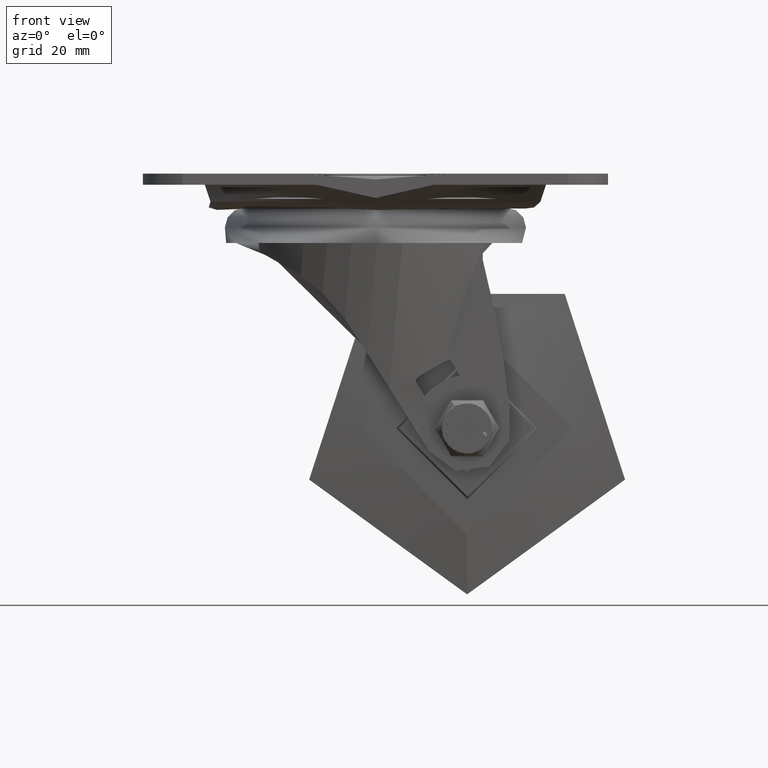
[diagram: clean part render]
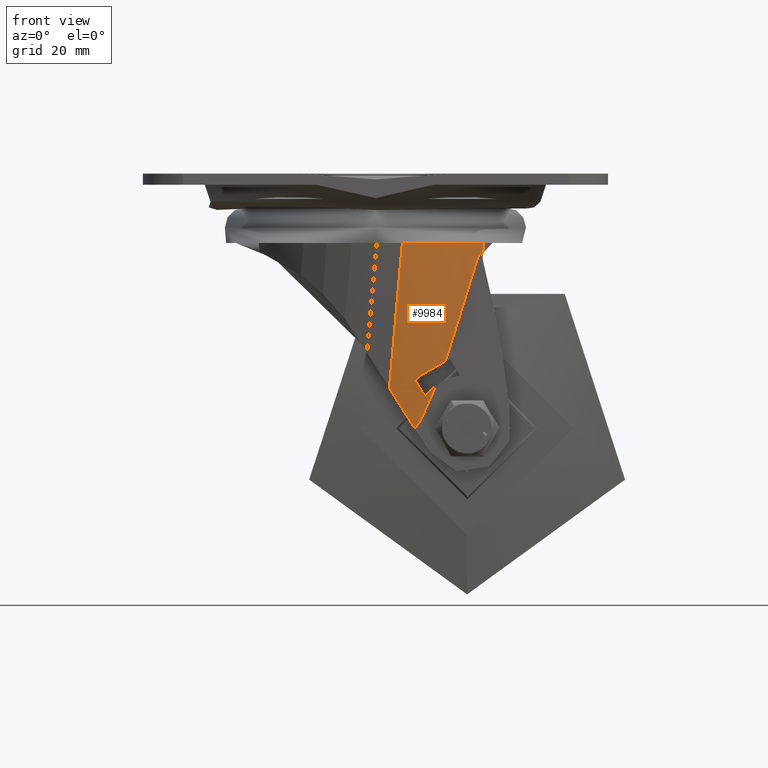
[diagram: same view with one face highlighted and labeled with its STEP entity id]
A machine part, front view. The second image highlights one B-rep face of the part: STEP entity #9984.
In plain terms, the highlighted face is a freeform B-spline surface patch.
Its self-contained STEP definition (entity closure, byte-faithful):
#284=B_SPLINE_SURFACE_WITH_KNOTS('',3,1,((#15486,#15487),(#15488,#15489),
(#15490,#15491),(#15492,#15493),(#15494,#15495),(#15496,#15497),(#15498,
#15499),(#15500,#15501),(#15502,#15503),(#15504,#15505),(#15506,#15507),
(#15508,#15509),(#15510,#15511),(#15512,#15513),(#15514,#15515),(#15516,
#15517),(#15518,#15519),(#15520,#15521),(#15522,#15523)),.UNSPECIFIED.,
 .F.,.F.,.F.,(4,2,2,2,2,2,2,2,1,4),(2,2),(0.,0.145707116189752,0.25129198299392,
0.356876849798088,0.409669283200172,0.462461716602256,0.51525415000434,
0.568046583406424,0.713753699596176,1.),(-100.,100.),.UNSPECIFIED.);
#405=ELLIPSE('',#10899,12.9426856952495,4.35685013964677);
#406=ELLIPSE('',#10900,2476.75222770739,450.920906771423);
#407=ELLIPSE('',#10901,133.472695881944,60.0200498495369);
#825=B_SPLINE_CURVE_WITH_KNOTS('',3,(#14968,#14969,#14970,#14971,#14972,
#14973,#14974,#14975,#14976,#14977,#14978,#14979,#14980,#14981,#14982,#14983,
#14984,#14985,#14986,#14987,#14988,#14989,#14990,#14991,#14992,#14993,#14994,
#14995,#14996,#14997),.UNSPECIFIED.,.F.,.F.,(4,2,2,2,2,2,2,2,2,2,2,2,2,
2,4),(9.98984317856809E-7,0.00895409234583361,0.014333160842674,0.0250995393866208,
0.0322898054343559,0.0418745984938202,0.047343928772949,0.0619278574650979,
0.0702782897149095,0.0798153277777112,0.0846467274807089,0.10266493464422,
0.116129834315476,0.136351991514442,0.165140722240407),.UNSPECIFIED.);
#841=B_SPLINE_CURVE_WITH_KNOTS('',3,(#15529,#15530,#15531,#15532,#15533,
#15534),.UNSPECIFIED.,.F.,.F.,(4,2,4),(-1.39702457417969,-0.55994134552425,
-0.00112300571014627),.UNSPECIFIED.);
#842=B_SPLINE_CURVE_WITH_KNOTS('',3,(#15538,#15539,#15540,#15541,#15542,
#15543,#15544,#15545,#15546,#15547,#15548,#15549,#15550),.UNSPECIFIED.,
 .F.,.F.,(4,3,3,3,4),(9.99999697947428E-7,0.0433461345695669,0.0986918822840282,
0.169573323051287,0.196522163107744),.UNSPECIFIED.);
#843=B_SPLINE_CURVE_WITH_KNOTS('',3,(#15552,#15553,#15554,#15555,#15556,
#15557,#15558,#15559,#15560,#15561),.UNSPECIFIED.,.F.,.F.,(4,3,3,4),(-0.875365755125785,
-0.437267686760523,-0.175629796504185,-1.00000000144074E-6),
 .UNSPECIFIED.);
#844=B_SPLINE_CURVE_WITH_KNOTS('',3,(#15563,#15564,#15565,#15566,#15567,
#15568,#15569,#15570,#15571,#15572,#15573,#15574,#15575),.UNSPECIFIED.,
 .F.,.F.,(4,3,3,3,4),(1.00000002677115E-6,0.0737502306970631,0.177804687490423,
0.310577260416321,0.357244979687233),.UNSPECIFIED.);
#845=B_SPLINE_CURVE_WITH_KNOTS('',3,(#15579,#15580,#15581,#15582,#15583,
#15584,#15585),.UNSPECIFIED.,.F.,.F.,(4,3,4),(-0.155589021992581,-0.0777929682373567,
-1.00000109869451E-6),.UNSPECIFIED.);
#846=B_SPLINE_CURVE_WITH_KNOTS('',3,(#15587,#15588,#15589,#15590,#15591,
#15592,#15593,#15594,#15595,#15596,#15597,#15598,#15599,#15600,#15601,#15602,
#15603,#15604,#15605,#15606,#15607,#15608),.UNSPECIFIED.,.F.,.F.,(4,3,3,
3,3,3,3,4),(-0.702289995427637,-0.526542371204496,-0.380112606210669,-0.350794746981354,
-0.272093765528381,-0.179410342944114,-0.0884228608013691,-1.00000001412077E-6),
 .UNSPECIFIED.);
#847=B_SPLINE_CURVE_WITH_KNOTS('',3,(#15610,#15611,#15612,#15613,#15614,
#15615),.UNSPECIFIED.,.F.,.F.,(4,2,4),(-2.61628651112819,-1.30823317989132,
-9.99999980155764E-7),.UNSPECIFIED.);
#848=B_SPLINE_CURVE_WITH_KNOTS('',3,(#15622,#15623,#15624,#15625,#15626,
#15627,#15628,#15629,#15630,#15631,#15632,#15633,#15634,#15635,#15636,#15637,
#15638,#15639,#15640,#15641,#15642,#15643,#15644,#15645,#15646,#15647,#15648,
#15649,#15650,#15651,#15652,#15653,#15654,#15655,#15656,#15657,#15658,#15659,
#15660,#15661,#15662,#15663,#15664,#15665,#15666,#15667,#15668,#15669,#15670,
#15671,#15672,#15673,#15674,#15675,#15676,#15677,#15678,#15679),
 .UNSPECIFIED.,.F.,.F.,(4,3,3,3,3,3,3,3,3,3,3,3,3,3,3,3,3,3,3,4),(-0.0786994418521546,
-0.0414667695336525,-0.0393357265743816,-0.0393007758129128,-0.0392480370192911,
-0.0392233325566457,-0.0392088533894709,-0.0391968398791962,-0.0391118565709216,
-0.0390223178308034,-0.038977988752127,-0.0389331810508286,-0.0389091808796442,
-0.0388874996426447,-0.0388668283560932,-0.0388419288481972,-0.0388054220790569,
-0.0387410185038432,-0.00357091828324042,-1.00000010608441E-6),
 .UNSPECIFIED.);
#1534=LINE('',#15525,#2093);
#1535=LINE('',#15527,#2094);
#1536=LINE('',#15621,#2095);
#2093=VECTOR('',#12257,1000.);
#2094=VECTOR('',#12258,1000.);
#2095=VECTOR('',#12267,1000.);
#2644=FACE_OUTER_BOUND('',#3271,.T.);
#3271=EDGE_LOOP('',(#7273,#7274,#7275,#7276,#7277,#7278,#7279,#7280,#7281,
#7282,#7283,#7284,#7285,#7286,#7287,#7288));
#4002=CIRCLE('',#10902,189.964607445669);
#4499=VERTEX_POINT('',#14960);
#4500=VERTEX_POINT('',#14967);
#4558=VERTEX_POINT('',#15524);
#4559=VERTEX_POINT('',#15526);
#4560=VERTEX_POINT('',#15528);
#4561=VERTEX_POINT('',#15535);
#4562=VERTEX_POINT('',#15537);
#4563=VERTEX_POINT('',#15551);
#4564=VERTEX_POINT('',#15562);
#4565=VERTEX_POINT('',#15576);
#4566=VERTEX_POINT('',#15578);
#4567=VERTEX_POINT('',#15586);
#4568=VERTEX_POINT('',#15609);
#4569=VERTEX_POINT('',#15616);
#4570=VERTEX_POINT('',#15618);
#4571=VERTEX_POINT('',#15620);
#5521=EDGE_CURVE('',#4500,#4499,#825,.T.);
#5600=EDGE_CURVE('',#4558,#4500,#1534,.T.);
#5601=EDGE_CURVE('',#4559,#4499,#1535,.T.);
#5602=EDGE_CURVE('',#4559,#4560,#841,.T.);
#5603=EDGE_CURVE('',#4561,#4560,#405,.T.);
#5604=EDGE_CURVE('',#4561,#4562,#842,.T.);
#5605=EDGE_CURVE('',#4562,#4563,#843,.T.);
#5606=EDGE_CURVE('',#4563,#4564,#844,.T.);
#5607=EDGE_CURVE('',#4564,#4565,#406,.T.);
#5608=EDGE_CURVE('',#4565,#4566,#845,.T.);
#5609=EDGE_CURVE('',#4566,#4567,#846,.T.);
#5610=EDGE_CURVE('',#4567,#4568,#847,.T.);
#5611=EDGE_CURVE('',#4569,#4568,#407,.T.);
#5612=EDGE_CURVE('',#4570,#4569,#4002,.T.);
#5613=EDGE_CURVE('',#4570,#4571,#1536,.T.);
#5614=EDGE_CURVE('',#4571,#4558,#848,.T.);
#7273=ORIENTED_EDGE('',*,*,#5600,.T.);
#7274=ORIENTED_EDGE('',*,*,#5521,.T.);
#7275=ORIENTED_EDGE('',*,*,#5601,.F.);
#7276=ORIENTED_EDGE('',*,*,#5602,.T.);
#7277=ORIENTED_EDGE('',*,*,#5603,.F.);
#7278=ORIENTED_EDGE('',*,*,#5604,.T.);
#7279=ORIENTED_EDGE('',*,*,#5605,.T.);
#7280=ORIENTED_EDGE('',*,*,#5606,.T.);
#7281=ORIENTED_EDGE('',*,*,#5607,.T.);
#7282=ORIENTED_EDGE('',*,*,#5608,.T.);
#7283=ORIENTED_EDGE('',*,*,#5609,.T.);
#7284=ORIENTED_EDGE('',*,*,#5610,.T.);
#7285=ORIENTED_EDGE('',*,*,#5611,.F.);
#7286=ORIENTED_EDGE('',*,*,#5612,.F.);
#7287=ORIENTED_EDGE('',*,*,#5613,.T.);
#7288=ORIENTED_EDGE('',*,*,#5614,.T.);
#9984=ADVANCED_FACE('',(#2644),#284,.T.);
#10899=AXIS2_PLACEMENT_3D('',#15536,#12259,#12260);
#10900=AXIS2_PLACEMENT_3D('',#15577,#12261,#12262);
#10901=AXIS2_PLACEMENT_3D('',#15617,#12263,#12264);
#10902=AXIS2_PLACEMENT_3D('',#15619,#12265,#12266);
#12257=DIRECTION('',(-0.172987393925012,-0.0871557427478391,0.981060262190405));
#12258=DIRECTION('',(-0.172987393925089,-0.0871557427476565,0.981060262190407));
#12259=DIRECTION('center_axis',(0.973588249857607,0.203901458801726,0.102713751940673));
#12260=DIRECTION('ref_axis',(-0.0137900195395975,-0.39654600779585,0.917911269710897));
#12261=DIRECTION('center_axis',(-5.38513567672909E-5,0.861047334516471,
-0.508524812395729));
#12262=DIRECTION('ref_axis',(0.756892857756714,0.332375884431464,0.562707271434515));
#12263=DIRECTION('center_axis',(4.1666781947423E-9,-0.756047199734464,-0.654517098152276));
#12264=DIRECTION('ref_axis',(0.464877001790903,0.579493255615957,-0.669385494241936));
#12265=DIRECTION('center_axis',(-0.55971639592094,0.680836762611853,-0.472418097466095));
#12266=DIRECTION('ref_axis',(-0.690456522261517,-0.698392965926969,-0.188459693330599));
#12267=DIRECTION('',(-0.172987393921777,-0.0871557427511322,0.981060262190682));
#14960=CARTESIAN_POINT('',(535.28923922575,-468.857643322788,-15.6578203240255));
#14967=CARTESIAN_POINT('',(545.069881219443,-487.182275138033,-15.6578201443325));
#14968=CARTESIAN_POINT('Ctrl Pts',(545.069881219444,-487.182275138033,-15.6578201443312));
#14969=CARTESIAN_POINT('Ctrl Pts',(545.04845801567,-487.161497740817,-15.6578201443312));
#14970=CARTESIAN_POINT('Ctrl Pts',(544.831217940722,-486.952049689453,-15.6578309463128));
#14971=CARTESIAN_POINT('Ctrl Pts',(544.366714427605,-486.4813740981,-15.6578674438992));
#14972=CARTESIAN_POINT('Ctrl Pts',(544.194325443629,-486.302825653918,-15.657874983149));
#14973=CARTESIAN_POINT('Ctrl Pts',(543.682807383998,-485.761289334446,-15.6578602981904));
#14974=CARTESIAN_POINT('Ctrl Pts',(543.349655119619,-485.392732228945,-15.6578716976183));
#14975=CARTESIAN_POINT('Ctrl Pts',(542.807682080785,-484.766088646989,-15.657730169686));
#14976=CARTESIAN_POINT('Ctrl Pts',(542.594348473589,-484.512004447317,-15.6576484061244));
#14977=CARTESIAN_POINT('Ctrl Pts',(542.105358291535,-483.911989555115,-15.6576500966098));
#14978=CARTESIAN_POINT('Ctrl Pts',(541.832667002899,-483.563721748727,-15.6578197743224));
#14979=CARTESIAN_POINT('Ctrl Pts',(541.415273354124,-483.008676038084,-15.6578203579067));
#14980=CARTESIAN_POINT('Ctrl Pts',(541.265878758059,-482.805339727466,-15.6578404570667));
#14981=CARTESIAN_POINT('Ctrl Pts',(540.726472051464,-482.053778656312,-15.657889059104));
#14982=CARTESIAN_POINT('Ctrl Pts',(540.350585988019,-481.495804511967,-15.6578974384409));
#14983=CARTESIAN_POINT('Ctrl Pts',(539.786014983395,-480.601613927499,-15.6577618730861));
#14984=CARTESIAN_POINT('Ctrl Pts',(539.585993535713,-480.272562119533,-15.6575800521336));
#14985=CARTESIAN_POINT('Ctrl Pts',(539.169498126139,-479.560404972335,-15.6575624091746));
#14986=CARTESIAN_POINT('Ctrl Pts',(538.954897424433,-479.176558175975,-15.6577981589137));
#14987=CARTESIAN_POINT('Ctrl Pts',(538.642903802193,-478.592184599534,-15.6578296755225));
#14988=CARTESIAN_POINT('Ctrl Pts',(538.539864578492,-478.394541656868,-15.657872493385));
#14989=CARTESIAN_POINT('Ctrl Pts',(538.061434582864,-477.454380179286,-15.6582735034107));
#14990=CARTESIAN_POINT('Ctrl Pts',(537.711499693431,-476.699419764906,-15.6587291704774));
#14991=CARTESIAN_POINT('Ctrl Pts',(537.148987099064,-475.359001007652,-15.6584152833702));
#14992=CARTESIAN_POINT('Ctrl Pts',(536.924199202747,-474.779285219195,-15.6579778435912));
#14993=CARTESIAN_POINT('Ctrl Pts',(536.401898147749,-473.314346490588,-15.6576560275441));
#14994=CARTESIAN_POINT('Ctrl Pts',(536.124746300196,-472.422502983826,-15.6585938445148));
#14995=CARTESIAN_POINT('Ctrl Pts',(535.542796406267,-470.235970616309,-15.6587092150103));
#14996=CARTESIAN_POINT('Ctrl Pts',(535.357822203971,-469.2348529614,-15.6577401133009));
#14997=CARTESIAN_POINT('Ctrl Pts',(535.28923920115,-468.857643327252,-15.6578202851122));
#15486=CARTESIAN_POINT('Ctrl Pts',(17840.112485919,8257.65118251777,-98163.6222332247));
#15487=CARTESIAN_POINT('Ctrl Pts',(-16757.3662990988,-9173.49736701387,
98048.4302048566));
#15488=CARTESIAN_POINT('Ctrl Pts',(17840.5495598532,8255.24779678493,-98163.6222332247));
#15489=CARTESIAN_POINT('Ctrl Pts',(-16756.9292251646,-9175.90075274671,
98048.4302048566));
#15490=CARTESIAN_POINT('Ctrl Pts',(17840.9866337875,8252.84441105209,-98163.6222332247));
#15491=CARTESIAN_POINT('Ctrl Pts',(-16756.4921512303,-9178.30413847955,
98048.4302048566));
#15492=CARTESIAN_POINT('Ctrl Pts',(17841.7404279639,8248.69944145487,-98163.6222332247));
#15493=CARTESIAN_POINT('Ctrl Pts',(-16755.7383570539,-9182.44910807677,
98048.4302048566));
#15494=CARTESIAN_POINT('Ctrl Pts',(17842.1881241976,8247.00545633227,-98163.6222332247));
#15495=CARTESIAN_POINT('Ctrl Pts',(-16755.2906608202,-9184.14309319937,
98048.4302048566));
#15496=CARTESIAN_POINT('Ctrl Pts',(17843.3345435916,8243.7087132327,-98163.6222332247));
#15497=CARTESIAN_POINT('Ctrl Pts',(-16754.1442414262,-9187.43983629893,
98048.4302048566));
#15498=CARTESIAN_POINT('Ctrl Pts',(17844.0332867973,8242.10596254058,-98163.6222332247));
#15499=CARTESIAN_POINT('Ctrl Pts',(-16753.4454982205,-9189.04258699106,
98048.4302048566));
#15500=CARTESIAN_POINT('Ctrl Pts',(17845.2753257094,8239.77231158128,-98163.6222332247));
#15501=CARTESIAN_POINT('Ctrl Pts',(-16752.2034593084,-9191.37623795036,
98048.4302048566));
#15502=CARTESIAN_POINT('Ctrl Pts',(17845.722317517,8239.00593570013,-98163.6222332247));
#15503=CARTESIAN_POINT('Ctrl Pts',(-16751.7564675008,-9192.14261383151,
98048.4302048566));
#15504=CARTESIAN_POINT('Ctrl Pts',(17846.6703546722,8237.51720266535,-98163.6222332247));
#15505=CARTESIAN_POINT('Ctrl Pts',(-16750.8084303456,-9193.63134686629,
98048.4302048566));
#15506=CARTESIAN_POINT('Ctrl Pts',(17847.1726842255,8236.79224558222,-98163.6222332247));
#15507=CARTESIAN_POINT('Ctrl Pts',(-16750.3061007923,-9194.35630394942,
98048.4302048566));
#15508=CARTESIAN_POINT('Ctrl Pts',(17848.2340312586,8235.3811955158,-98163.6222332247));
#15509=CARTESIAN_POINT('Ctrl Pts',(-16749.2447537592,-9195.76735401584,
98048.4302048566));
#15510=CARTESIAN_POINT('Ctrl Pts',(17848.7941481744,8234.69401985826,-98163.6222332247));
#15511=CARTESIAN_POINT('Ctrl Pts',(-16748.6846368434,-9196.45452967338,
98048.4302048566));
#15512=CARTESIAN_POINT('Ctrl Pts',(17849.962174422,8233.36997154194,-98163.6222332247));
#15513=CARTESIAN_POINT('Ctrl Pts',(-16747.5166105958,-9197.77857798969,
98048.4302048566));
#15514=CARTESIAN_POINT('Ctrl Pts',(17850.5708410783,8232.73189601551,-98163.6222332247));
#15515=CARTESIAN_POINT('Ctrl Pts',(-16746.9079439395,-9198.41665351613,
98048.4302048566));
#15516=CARTESIAN_POINT('Ctrl Pts',(17852.9519279365,8230.42258747412,-98163.6222332247));
#15517=CARTESIAN_POINT('Ctrl Pts',(-16744.5268570813,-9200.72596205752,
98048.4302048566));
#15518=CARTESIAN_POINT('Ctrl Pts',(17858.133393616,8225.39731806433,-98163.6222332247));
#15519=CARTESIAN_POINT('Ctrl Pts',(-16739.3453914018,-9205.75123146731,
98048.4302048566));
#15520=CARTESIAN_POINT('Ctrl Pts',(17863.3148592955,8220.3720486545,-98163.6222332247));
#15521=CARTESIAN_POINT('Ctrl Pts',(-16734.1639257223,-9210.77650087713,
98048.4302048566));
#15522=CARTESIAN_POINT('Ctrl Pts',(17866.7485058982,8217.04190998253,-98163.6222332247));
#15523=CARTESIAN_POINT('Ctrl Pts',(-16730.7302791196,-9214.10663954911,
98048.4302048566));
#15524=CARTESIAN_POINT('',(545.484915772216,-486.973169469162,-18.0115980579881));
#15525=CARTESIAN_POINT('',(545.484915772216,-486.973169469162,-18.0115980579881));
#15526=CARTESIAN_POINT('',(541.077870221783,-465.941176145587,-48.4867759907396));
#15527=CARTESIAN_POINT('',(541.077870214779,-465.941176168304,-48.4867758864478));
#15528=CARTESIAN_POINT('',(544.530793971524,-471.640252263691,-57.4942907231651));
#15529=CARTESIAN_POINT('Ctrl Pts',(541.077870204707,-465.941176142173,-48.4867759981506));
#15530=CARTESIAN_POINT('Ctrl Pts',(541.25570757502,-466.307006799842,-49.0650522365003));
#15531=CARTESIAN_POINT('Ctrl Pts',(541.787294683191,-467.40053716534,-50.7936187549765));
#15532=CARTESIAN_POINT('Ctrl Pts',(543.222019589238,-469.769566575994,-54.5383935227954));
#15533=CARTESIAN_POINT('Ctrl Pts',(543.850579766774,-470.711289829226,-56.0269953363195));
#15534=CARTESIAN_POINT('Ctrl Pts',(544.530057182542,-471.638543889406,-57.492725391127));
#15535=CARTESIAN_POINT('',(544.531668936712,-471.66756477845,-57.4457044807626));
#15536=CARTESIAN_POINT('Origin',(543.531084302943,-469.493135758678,-52.2780596113595));
#15537=CARTESIAN_POINT('',(544.700595109542,-472.860812740295,-55.8967323684303));
#15538=CARTESIAN_POINT('Ctrl Pts',(544.531668936714,-471.667564778448,-57.4457044807932));
#15539=CARTESIAN_POINT('Ctrl Pts',(544.567545464035,-471.791736242585,-57.3811296332757));
#15540=CARTESIAN_POINT('Ctrl Pts',(544.594608687045,-471.906426702107,-57.289161406518));
#15541=CARTESIAN_POINT('Ctrl Pts',(544.615256972899,-472.008504581279,-57.1891312106163));
#15542=CARTESIAN_POINT('Ctrl Pts',(544.641621980898,-472.138843928567,-57.0614064719313));
#15543=CARTESIAN_POINT('Ctrl Pts',(544.659482345118,-472.258304766695,-56.911020448538));
#15544=CARTESIAN_POINT('Ctrl Pts',(544.671740446431,-472.363569156581,-56.7602855249424));
#15545=CARTESIAN_POINT('Ctrl Pts',(544.687439428161,-472.498381530154,-56.5672389224552));
#15546=CARTESIAN_POINT('Ctrl Pts',(544.695540500714,-472.623606734689,-56.3539716208499));
#15547=CARTESIAN_POINT('Ctrl Pts',(544.698808391787,-472.736898528898,-56.1400071105309));
#15548=CARTESIAN_POINT('Ctrl Pts',(544.700050830892,-472.779971615573,-56.0586586601617));
#15549=CARTESIAN_POINT('Ctrl Pts',(544.700595109545,-472.821319568566,-55.9772094289595));
#15550=CARTESIAN_POINT('Ctrl Pts',(544.700595109541,-472.860812740295,-55.8967323684337));
#15551=CARTESIAN_POINT('',(544.700595109542,-476.410822983744,-47.9121621527826));
#15552=CARTESIAN_POINT('Ctrl Pts',(544.700595109546,-472.860812740295,-55.8967323684737));
#15553=CARTESIAN_POINT('Ctrl Pts',(544.700595109541,-473.50153704335,-54.5910988564418));
#15554=CARTESIAN_POINT('Ctrl Pts',(544.700595109892,-474.117368035737,-53.2624902942474));
#15555=CARTESIAN_POINT('Ctrl Pts',(544.700595109891,-474.706321511309,-51.9327968077596));
#15556=CARTESIAN_POINT('Ctrl Pts',(544.700595109891,-475.058052221702,-51.1386864849489));
#15557=CARTESIAN_POINT('Ctrl Pts',(544.70058754783,-475.402561529791,-50.3388408080415));
#15558=CARTESIAN_POINT('Ctrl Pts',(544.700576572245,-475.740191031618,-49.5351737394412));
#15559=CARTESIAN_POINT('Ctrl Pts',(544.700569204701,-475.966830464509,-48.9956988189318));
#15560=CARTESIAN_POINT('Ctrl Pts',(544.700595109272,-476.190380246538,-48.4545019833484));
#15561=CARTESIAN_POINT('Ctrl Pts',(544.700595109545,-476.41082298374,-47.9121621528247));
#15562=CARTESIAN_POINT('',(543.927554417434,-473.855790723412,-50.2568280597537));
#15563=CARTESIAN_POINT('Ctrl Pts',(544.700595109537,-476.410822983746,-47.9121621527738));
#15564=CARTESIAN_POINT('Ctrl Pts',(544.625436526629,-476.220218931262,-48.0480078176866));
#15565=CARTESIAN_POINT('Ctrl Pts',(544.554957495576,-476.032073014809,-48.1892221974258));
#15566=CARTESIAN_POINT('Ctrl Pts',(544.489098412792,-475.846739466415,-48.335821498491));
#15567=CARTESIAN_POINT('Ctrl Pts',(544.396176344055,-475.585248173265,-48.542661766443));
#15568=CARTESIAN_POINT('Ctrl Pts',(544.312383499115,-475.329327222225,-48.7602218113218));
#15569=CARTESIAN_POINT('Ctrl Pts',(544.237341726794,-475.079617747391,-48.9885471528687));
#15570=CARTESIAN_POINT('Ctrl Pts',(544.141589084427,-474.760990650779,-49.2798882832305));
#15571=CARTESIAN_POINT('Ctrl Pts',(544.060585817314,-474.454080848985,-49.587393223831));
#15572=CARTESIAN_POINT('Ctrl Pts',(543.993365823484,-474.16043941735,-49.910446250331));
#15573=CARTESIAN_POINT('Ctrl Pts',(543.969738927263,-474.057228523745,-50.0239949119114));
#15574=CARTESIAN_POINT('Ctrl Pts',(543.947815251795,-473.955656692268,-50.1394644229929));
#15575=CARTESIAN_POINT('Ctrl Pts',(543.927554396734,-473.855790712288,-50.2568280467094));
#15576=CARTESIAN_POINT('',(542.287590472236,-471.731670556292,-46.6600390914479));
#15577=CARTESIAN_POINT('Origin',(2432.72078286458,337.640341458502,1323.5893454444));
#15578=CARTESIAN_POINT('',(542.50222857205,-472.860812690979,-45.6126519268971));
#15579=CARTESIAN_POINT('Ctrl Pts',(542.287590435877,-471.731670428321,-46.6600389591622));
#15580=CARTESIAN_POINT('Ctrl Pts',(542.315840646016,-471.913030089606,-46.4768528105299));
#15581=CARTESIAN_POINT('Ctrl Pts',(542.347731364287,-472.097963150292,-46.2978842210159));
#15582=CARTESIAN_POINT('Ctrl Pts',(542.383455300879,-472.286286381101,-46.123227855951));
#15583=CARTESIAN_POINT('Ctrl Pts',(542.419177361402,-472.474599721973,-45.948580663098));
#15584=CARTESIAN_POINT('Ctrl Pts',(542.458707700811,-472.666172694164,-45.7783658267577));
#15585=CARTESIAN_POINT('Ctrl Pts',(542.502228518666,-472.860812637141,-45.6126518496603));
#15586=CARTESIAN_POINT('',(544.700595109542,-478.568300985078,-42.3269146459475));
#15587=CARTESIAN_POINT('Ctrl Pts',(542.502228590067,-472.860812740298,-45.612651989577));
#15588=CARTESIAN_POINT('Ctrl Pts',(542.600577925364,-473.300662480733,-45.2381716390561));
#15589=CARTESIAN_POINT('Ctrl Pts',(542.718799617909,-473.753895849001,-44.8886041937877));
#15590=CARTESIAN_POINT('Ctrl Pts',(542.858442170301,-474.218103233671,-44.5638226580486));
#15591=CARTESIAN_POINT('Ctrl Pts',(542.974789837704,-474.604872491839,-44.2932205138499));
#15592=CARTESIAN_POINT('Ctrl Pts',(543.106008263192,-474.999259623794,-44.0398245576945));
#15593=CARTESIAN_POINT('Ctrl Pts',(543.252954199855,-475.399885068555,-43.803561336681));
#15594=CARTESIAN_POINT('Ctrl Pts',(543.282375405889,-475.480097451562,-43.7562572120378));
#15595=CARTESIAN_POINT('Ctrl Pts',(543.312426928033,-475.560559967736,-43.7096398908764));
#15596=CARTESIAN_POINT('Ctrl Pts',(543.343115391153,-475.641261635907,-43.663708783628));
#15597=CARTESIAN_POINT('Ctrl Pts',(543.425495627309,-475.857897524643,-43.5404111311151));
#15598=CARTESIAN_POINT('Ctrl Pts',(543.512053781339,-476.075229940084,-43.4225480087413));
#15599=CARTESIAN_POINT('Ctrl Pts',(543.602907679569,-476.293226402932,-43.3099841044605));
#15600=CARTESIAN_POINT('Ctrl Pts',(543.709903171719,-476.549953293946,-43.1774214894131));
#15601=CARTESIAN_POINT('Ctrl Pts',(543.8229237713,-476.807628518052,-43.0522083376071));
#15602=CARTESIAN_POINT('Ctrl Pts',(543.941959373657,-477.065853391846,-42.9341236440232));
#15603=CARTESIAN_POINT('Ctrl Pts',(544.058816837934,-477.319353213476,-42.8181996885928));
#15604=CARTESIAN_POINT('Ctrl Pts',(544.181471227471,-477.573382787971,-42.7091457021498));
#15605=CARTESIAN_POINT('Ctrl Pts',(544.309893757116,-477.827519146391,-42.6067525909893));
#15606=CARTESIAN_POINT('Ctrl Pts',(544.434695089922,-478.07448948978,-42.5072467116219));
#15607=CARTESIAN_POINT('Ctrl Pts',(544.564943852128,-478.321560630383,-42.4140313632642));
#15608=CARTESIAN_POINT('Ctrl Pts',(544.70059510954,-478.56830098508,-42.3269146459497));
#15609=CARTESIAN_POINT('',(544.700595109542,-486.382934331562,-17.287940295075));
#15610=CARTESIAN_POINT('Ctrl Pts',(544.700595109542,-478.568300985078,-42.3269146459474));
#15611=CARTESIAN_POINT('Ctrl Pts',(544.700595109542,-480.065051180952,-38.2585964590495));
#15612=CARTESIAN_POINT('Ctrl Pts',(544.700595109546,-481.460639523922,-34.0608309295989));
#15613=CARTESIAN_POINT('Ctrl Pts',(544.700595109546,-484.036134012649,-25.733153147614));
#15614=CARTESIAN_POINT('Ctrl Pts',(544.700595109542,-485.248447359738,-21.4985599363867));
#15615=CARTESIAN_POINT('Ctrl Pts',(544.700595109542,-486.382934331562,-17.287940295075));
#15616=CARTESIAN_POINT('',(544.734454130953,-486.433161715146,-17.2299215313835));
#15617=CARTESIAN_POINT('Origin',(621.034877514935,-419.725866859155,-94.2849951149308));
#15618=CARTESIAN_POINT('',(545.654832780795,-486.887560669861,-18.9752452995807));
#15619=CARTESIAN_POINT('Origin',(676.817134990504,-354.217615054729,16.8254263632978));
#15620=CARTESIAN_POINT('',(545.619961607983,-486.905129712888,-18.7774810511841));
#15621=CARTESIAN_POINT('',(545.654832780794,-486.887560669861,-18.9752452995807));
#15622=CARTESIAN_POINT('Ctrl Pts',(545.619961607978,-486.90512971289,-18.777481051191));
#15623=CARTESIAN_POINT('Ctrl Pts',(545.583345820549,-486.900400752103,-18.6590163596906));
#15624=CARTESIAN_POINT('Ctrl Pts',(545.553478127976,-486.902627139782,-18.5388802741826));
#15625=CARTESIAN_POINT('Ctrl Pts',(545.531019300479,-486.912383034684,-18.417503131408));
#15626=CARTESIAN_POINT('Ctrl Pts',(545.529733850813,-486.912941421441,-18.4105560097157));
#15627=CARTESIAN_POINT('Ctrl Pts',(545.528472682534,-486.913524464328,-18.4036048224009));
#15628=CARTESIAN_POINT('Ctrl Pts',(545.52723592344,-486.914132267204,-18.396649650138));
#15629=CARTESIAN_POINT('Ctrl Pts',(545.527215639629,-486.914142235644,-18.3965355799051));
#15630=CARTESIAN_POINT('Ctrl Pts',(545.527195321712,-486.914152230766,-18.3964212797641));
#15631=CARTESIAN_POINT('Ctrl Pts',(545.527175010526,-486.914162232543,-18.3963069791644));
#15632=CARTESIAN_POINT('Ctrl Pts',(545.527144362053,-486.914177324679,-18.3961345057908));
#15633=CARTESIAN_POINT('Ctrl Pts',(545.527113730463,-486.914192431169,-18.3959620403046));
#15634=CARTESIAN_POINT('Ctrl Pts',(545.527083114107,-486.914207552823,-18.3957895734493));
#15635=CARTESIAN_POINT('Ctrl Pts',(545.52706877247,-486.914214636268,-18.3957087847036));
#15636=CARTESIAN_POINT('Ctrl Pts',(545.527054435583,-486.914221722345,-18.3956280035799));
#15637=CARTESIAN_POINT('Ctrl Pts',(545.527040102039,-486.914228811749,-18.3955472221569));
#15638=CARTESIAN_POINT('Ctrl Pts',(545.527031701217,-486.914232966815,-18.395499876552));
#15639=CARTESIAN_POINT('Ctrl Pts',(545.52702327881,-486.91423713427,-18.3954524027198));
#15640=CARTESIAN_POINT('Ctrl Pts',(545.527014857577,-486.914241302868,-18.3954049288732));
#15641=CARTESIAN_POINT('Ctrl Pts',(545.527007870395,-486.914244761596,-18.3953655393463));
#15642=CARTESIAN_POINT('Ctrl Pts',(545.527000912732,-486.914248206893,-18.3953263116822));
#15643=CARTESIAN_POINT('Ctrl Pts',(545.526993955887,-486.914251652956,-18.3952870841313));
#15644=CARTESIAN_POINT('Ctrl Pts',(545.526944743316,-486.914276030335,-18.395009589296));
#15645=CARTESIAN_POINT('Ctrl Pts',(545.526895571346,-486.914300446402,-18.3947320974277));
#15646=CARTESIAN_POINT('Ctrl Pts',(545.526846438826,-486.91432490173,-18.3944546020211));
#15647=CARTESIAN_POINT('Ctrl Pts',(545.526794672615,-486.914350667958,-18.3941622317946));
#15648=CARTESIAN_POINT('Ctrl Pts',(545.526742950075,-486.914376477832,-18.3938698569446));
#15649=CARTESIAN_POINT('Ctrl Pts',(545.526691271346,-486.914402331294,-18.3935774782149));
#15650=CARTESIAN_POINT('Ctrl Pts',(545.526665686102,-486.914415130895,-18.3934327265722));
#15651=CARTESIAN_POINT('Ctrl Pts',(545.526640112017,-486.914427940971,-18.3932879763464));
#15652=CARTESIAN_POINT('Ctrl Pts',(545.526614548669,-486.91444076173,-18.3931432251702));
#15653=CARTESIAN_POINT('Ctrl Pts',(545.526588709312,-486.914453720916,-18.3929969111104));
#15654=CARTESIAN_POINT('Ctrl Pts',(545.5265628803,-486.914466691333,-18.3928505925354));
#15655=CARTESIAN_POINT('Ctrl Pts',(545.526537062261,-486.914479672667,-18.3927042729774));
#15656=CARTESIAN_POINT('Ctrl Pts',(545.526523233447,-486.914486625808,-18.3926259004134));
#15657=CARTESIAN_POINT('Ctrl Pts',(545.526509407419,-486.914493582261,-18.3925475255202));
#15658=CARTESIAN_POINT('Ctrl Pts',(545.526495584543,-486.914500541847,-18.3924691503635));
#15659=CARTESIAN_POINT('Ctrl Pts',(545.526483097254,-486.914506828987,-18.3923983479374));
#15660=CARTESIAN_POINT('Ctrl Pts',(545.52647061241,-486.914513118747,-18.3923275445687));
#15661=CARTESIAN_POINT('Ctrl Pts',(545.526458130132,-486.914519411065,-18.3922567409609));
#15662=CARTESIAN_POINT('Ctrl Pts',(545.526446229302,-486.914525410275,-18.3921892355106));
#15663=CARTESIAN_POINT('Ctrl Pts',(545.526434333364,-486.914531410521,-18.392121744358));
#15664=CARTESIAN_POINT('Ctrl Pts',(545.526422439762,-486.914537413087,-18.3920542530104));
#15665=CARTESIAN_POINT('Ctrl Pts',(545.526408113376,-486.914544643452,-18.3919729566026));
#15666=CARTESIAN_POINT('Ctrl Pts',(545.526393789741,-486.914551877509,-18.3918916562798));
#15667=CARTESIAN_POINT('Ctrl Pts',(545.526379469495,-486.914559114936,-18.3918103556643));
#15668=CARTESIAN_POINT('Ctrl Pts',(545.526358473663,-486.914569726194,-18.3916911556058));
#15669=CARTESIAN_POINT('Ctrl Pts',(545.526337484515,-486.914580345,-18.391571951524));
#15670=CARTESIAN_POINT('Ctrl Pts',(545.526316502653,-486.914590971054,-18.3914527467859));
#15671=CARTESIAN_POINT('Ctrl Pts',(545.52627948741,-486.914609717052,-18.3912424512299));
#15672=CARTESIAN_POINT('Ctrl Pts',(545.52624249517,-486.914628485436,-18.3910321555613));
#15673=CARTESIAN_POINT('Ctrl Pts',(545.52620552561,-486.914647276373,-18.3908218579309));
#15674=CARTESIAN_POINT('Ctrl Pts',(545.506016846523,-486.92490880538,-18.2759805821791));
#15675=CARTESIAN_POINT('Ctrl Pts',(545.492659128982,-486.941863255374,-18.1609546533503));
#15676=CARTESIAN_POINT('Ctrl Pts',(545.486551105597,-486.965698546894,-18.0464495284832));
#15677=CARTESIAN_POINT('Ctrl Pts',(545.485931114632,-486.968117932748,-18.0348267598186));
#15678=CARTESIAN_POINT('Ctrl Pts',(545.485385850188,-486.970608181796,-18.023209357064));
#15679=CARTESIAN_POINT('Ctrl Pts',(545.484915772211,-486.973169469164,-18.0115980580013));